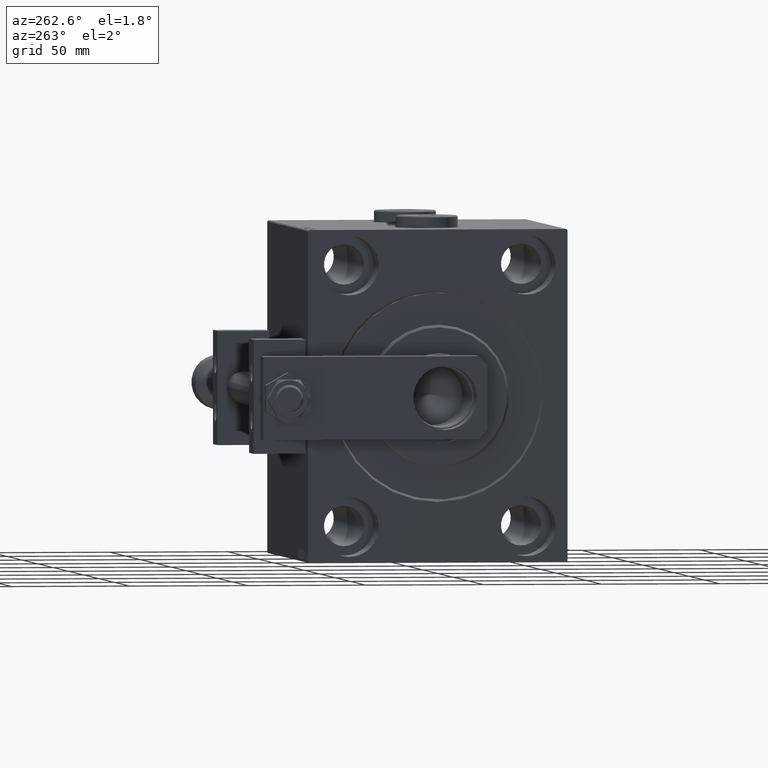
[diagram: clean part render]
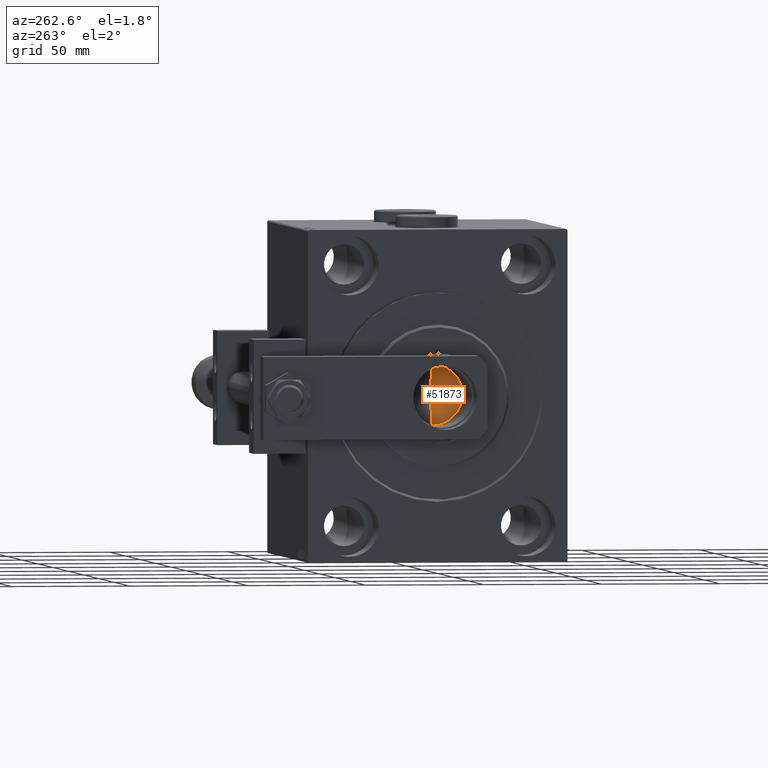
[diagram: same view with one face highlighted and labeled with its STEP entity id]
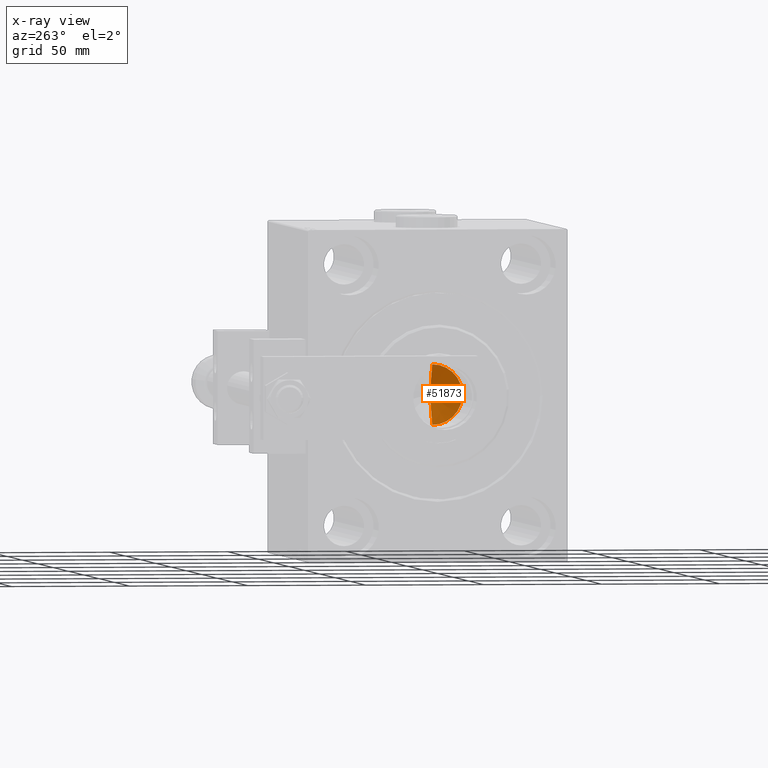
[diagram: x-ray of the same camera — body ghosted, the highlighted face saturated]
A machine part, auxiliary view. The second image highlights one B-rep face of the part: STEP entity #51873.
The next image is the same camera in x-ray: the body ghosted, the highlighted face saturated — about 1% of this face is hidden behind the body in this view.
In plain terms, the highlighted conical surface has half-angle 59 deg.
Its self-contained STEP definition (entity closure, byte-faithful):
#4347 = EDGE_CURVE ( 'NONE', #40992, #25923, #50101, .T. ) ;
#9376 = ORIENTED_EDGE ( 'NONE', *, *, #4347, .T. ) ;
#10237 = CARTESIAN_POINT ( 'NONE',  ( -12.74999999999999467, 1.561424668912874519E-15, 94.00000000000000000 ) ) ;
#10746 = ORIENTED_EDGE ( 'NONE', *, *, #42746, .T. ) ;
#12054 = CARTESIAN_POINT ( 'NONE',  ( 0.000000000000000000, 0.000000000000000000, 94.00000000000000000 ) ) ;
#12582 = CARTESIAN_POINT ( 'NONE',  ( -1.026246296720136938E-14, 0.000000000000000000, 86.33902710739860709 ) ) ;
#12929 = VECTOR ( 'NONE', #22170, 1000.000000000000000 ) ;
#12962 = LINE ( 'NONE', #21719, #34582 ) ;
#14424 = CARTESIAN_POINT ( 'NONE',  ( -12.74999999999999467, 1.561424668912874519E-15, 94.00000000000000000 ) ) ;
#14614 = DIRECTION ( 'NONE',  ( 1.000000000000000000, 0.000000000000000000, 0.000000000000000000 ) ) ;
#15140 = DIRECTION ( 'NONE',  ( -0.000000000000000000, -0.000000000000000000, 1.000000000000000000 ) ) ;
#15501 = DIRECTION ( 'NONE',  ( -0.000000000000000000, -0.000000000000000000, 1.000000000000000000 ) ) ;
#15588 = AXIS2_PLACEMENT_3D ( 'NONE', #12054, #15501, #43692 ) ;
#18955 = VERTEX_POINT ( 'NONE', #37331 ) ;
#19071 = ORIENTED_EDGE ( 'NONE', *, *, #19999, .F. ) ;
#19922 = FACE_OUTER_BOUND ( 'NONE', #24862, .T. ) ;
#19999 = EDGE_CURVE ( 'NONE', #40992, #18955, #12962, .T. ) ;
#21719 = CARTESIAN_POINT ( 'NONE',  ( 12.74999999999999467, 0.000000000000000000, 94.00000000000000000 ) ) ;
#22170 = DIRECTION ( 'NONE',  ( -0.8571673007021118895, 1.049727191138618079E-16, 0.5150380749100549327 ) ) ;
#24862 = EDGE_LOOP ( 'NONE', ( #19071, #9376, #10746 ) ) ;
#25923 = VERTEX_POINT ( 'NONE', #14424 ) ;
#30347 = CONICAL_SURFACE ( 'NONE', #47300, 12.74999999999999467, 1.029744258676653645 ) ;
#34582 = VECTOR ( 'NONE', #37667, 1000.000000000000000 ) ;
#37331 = CARTESIAN_POINT ( 'NONE',  ( 12.74999999999999467, 0.000000000000000000, 94.00000000000000000 ) ) ;
#37667 = DIRECTION ( 'NONE',  ( 0.8571673007021118895, 0.000000000000000000, 0.5150380749100549327 ) ) ;
#38498 = CIRCLE ( 'NONE', #15588, 12.74999999999999467 ) ;
#40992 = VERTEX_POINT ( 'NONE', #12582 ) ;
#42746 = EDGE_CURVE ( 'NONE', #25923, #18955, #38498, .T. ) ;
#43692 = DIRECTION ( 'NONE',  ( 1.000000000000000000, 0.000000000000000000, 0.000000000000000000 ) ) ;
#47300 = AXIS2_PLACEMENT_3D ( 'NONE', #51038, #15140, #14614 ) ;
#50101 = LINE ( 'NONE', #10237, #12929 ) ;
#51038 = CARTESIAN_POINT ( 'NONE',  ( 0.000000000000000000, 0.000000000000000000, 94.00000000000000000 ) ) ;
#51873 = ADVANCED_FACE ( 'NONE', ( #19922 ), #30347, .F. ) ;